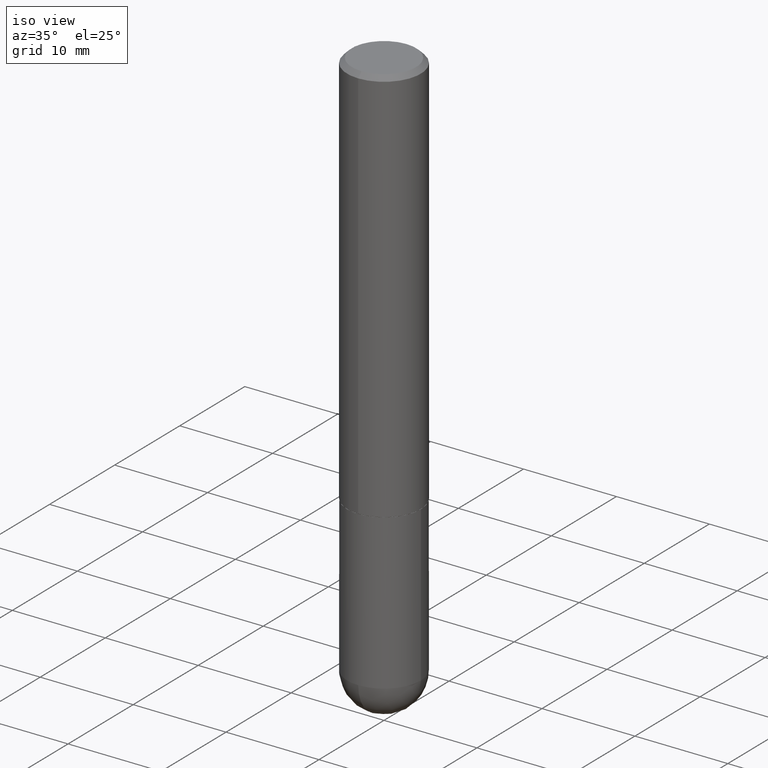
[diagram: clean part render]
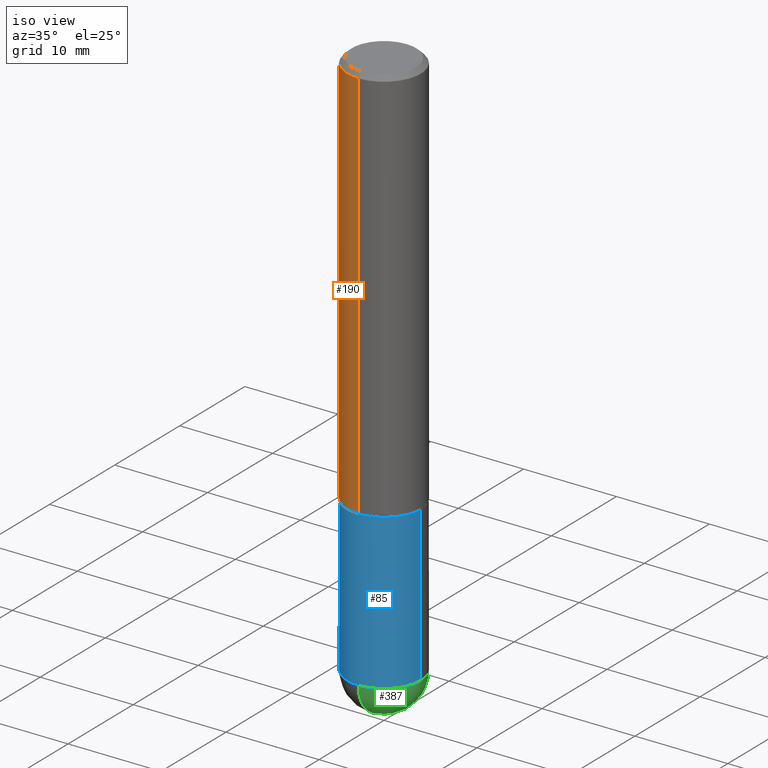
[diagram: same view with three faces highlighted in distinct colors, each labeled with its STEP entity id]
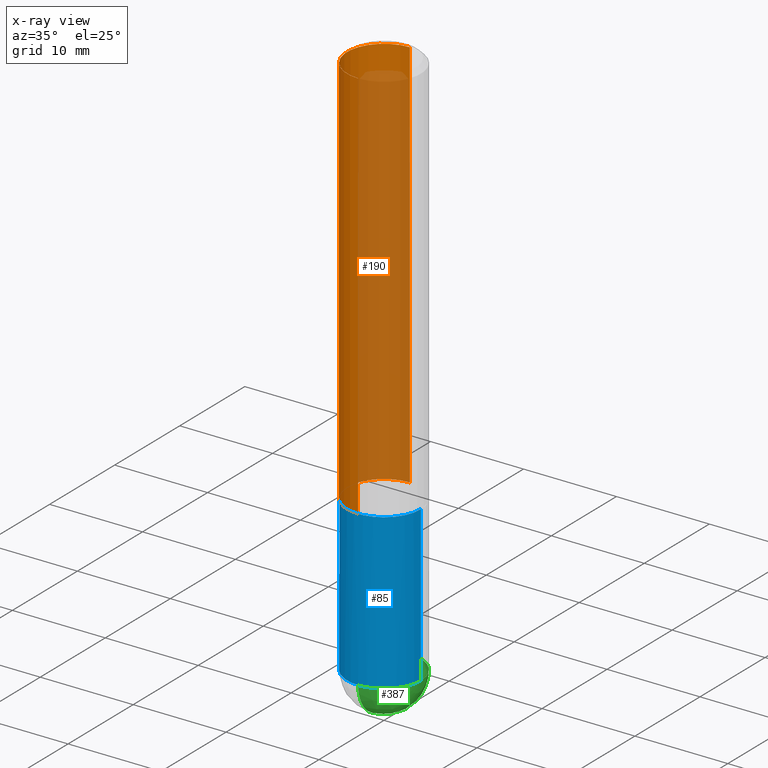
[diagram: x-ray of the same camera — body ghosted, the three highlighted faces saturated]
A machine part, iso view with three faces highlighted in distinct colors.
The next image is the same camera in x-ray (body ghosted, the three faces saturated) — at least one of them is partly hidden behind the body in this view.
Their STEP definitions:

[orange] entity #190 — the highlighted cylindrical surface (partial cylindrical patch) has radius 3.9688 mm, axis along (-0, 0, 1).
#1 = LINE ( 'NONE', #68, #19 ) ;
#18 = CYLINDRICAL_SURFACE ( 'NONE', #248, 0.1562500000000001110 ) ;
#19 = VECTOR ( 'NONE', #241, 39.37007874015748143 ) ;
#27 = VERTEX_POINT ( 'NONE', #189 ) ;
#32 = CARTESIAN_POINT ( 'NONE',  ( -1.091087918388479765E-15, -0.1562500000000001110, 5.454067469963343169E-16 ) ) ;
#68 = CARTESIAN_POINT ( 'NONE',  ( 1.110223024625157132E-15, 0.1562500000000001110, -5.454067469963343169E-16 ) ) ;
#79 = EDGE_CURVE ( 'NONE', #402, #97, #264, .T. ) ;
#91 = CARTESIAN_POINT ( 'NONE',  ( 1.091087918388479568E-15, 0.1562499999999999445, -0.02000000000000057981 ) ) ;
#96 = DIRECTION ( 'NONE',  ( -2.446082020685560042E-29, 3.490603180776537498E-15, 1.000000000000000000 ) ) ;
#97 = VERTEX_POINT ( 'NONE', #211 ) ;
#98 = AXIS2_PLACEMENT_3D ( 'NONE', #261, #378, #99 ) ;
#99 = DIRECTION ( 'NONE',  ( -6.982962677686265922E-15, -1.000000000000000000, 3.496765431890251792E-15 ) ) ;
#107 = DIRECTION ( 'NONE',  ( -6.982962677686265133E-15, -1.000000000000000000, 3.496765431890256920E-15 ) ) ;
#109 = CARTESIAN_POINT ( 'NONE',  ( 0.000000000000000000, 0.000000000000000000, 0.000000000000000000 ) ) ;
#111 = EDGE_CURVE ( 'NONE', #97, #27, #339, .T. ) ;
#127 = EDGE_LOOP ( 'NONE', ( #290, #268, #255, #262 ) ) ;
#135 = VERTEX_POINT ( 'NONE', #91 ) ;
#159 = AXIS2_PLACEMENT_3D ( 'NONE', #271, #341, #107 ) ;
#189 = CARTESIAN_POINT ( 'NONE',  ( -1.071952812151801215E-15, -0.1562500000000000833, -0.01999999999999948694 ) ) ;
#190 = ADVANCED_FACE ( 'NONE', ( #272 ), #18, .T. ) ;
#211 = CARTESIAN_POINT ( 'NONE',  ( -1.091087918388439336E-15, -0.1562500000000060785, -1.686999999999999611 ) ) ;
#238 = VECTOR ( 'NONE', #96, 39.37007874015748143 ) ;
#241 = DIRECTION ( 'NONE',  ( -2.446082020685560042E-29, 3.490603180776537498E-15, 1.000000000000000000 ) ) ;
#244 = DIRECTION ( 'NONE',  ( -2.446082020685560042E-29, 3.490603180776537498E-15, 1.000000000000000000 ) ) ;
#248 = AXIS2_PLACEMENT_3D ( 'NONE', #109, #244, #283 ) ;
#255 = ORIENTED_EDGE ( 'NONE', *, *, #111, .T. ) ;
#261 = CARTESIAN_POINT ( 'NONE',  ( 4.126540368896540526E-29, -5.888647565970019255E-15, -1.687000000000000055 ) ) ;
#262 = ORIENTED_EDGE ( 'NONE', *, *, #309, .F. ) ;
#264 = CIRCLE ( 'NONE', #98, 0.1562500000000002220 ) ;
#268 = ORIENTED_EDGE ( 'NONE', *, *, #79, .T. ) ;
#271 = CARTESIAN_POINT ( 'NONE',  ( 4.892164041371128702E-31, -6.981206361553086139E-17, -0.02000000000000003511 ) ) ;
#272 = FACE_OUTER_BOUND ( 'NONE', #127, .T. ) ;
#283 = DIRECTION ( 'NONE',  ( -6.982962677686265922E-15, -1.000000000000000000, 3.490603180776537104E-15 ) ) ;
#286 = EDGE_CURVE ( 'NONE', #402, #135, #1, .T. ) ;
#290 = ORIENTED_EDGE ( 'NONE', *, *, #286, .F. ) ;
#294 = CIRCLE ( 'NONE', #159, 0.1562500000000000000 ) ;
#309 = EDGE_CURVE ( 'NONE', #135, #27, #294, .T. ) ;
#339 = LINE ( 'NONE', #32, #238 ) ;
#341 = DIRECTION ( 'NONE',  ( -2.446082020685560042E-29, 3.490603180776537498E-15, 1.000000000000000000 ) ) ;
#378 = DIRECTION ( 'NONE',  ( -2.446082020685560042E-29, 3.490603180776537498E-15, 1.000000000000000000 ) ) ;
#397 = CARTESIAN_POINT ( 'NONE',  ( 1.110223024625178431E-15, 0.1562499999999943379, -1.687000000000000499 ) ) ;
#402 = VERTEX_POINT ( 'NONE', #397 ) ;

[blue] entity #85 — the highlighted cylindrical surface (partial cylindrical patch) has radius 3.9688 mm, axis along (-0, 0, 1).
#8 = CARTESIAN_POINT ( 'NONE',  ( 4.127951344840510809E-29, -5.893620499967230340E-15, -1.688000000000000167 ) ) ;
#10 = VERTEX_POINT ( 'NONE', #278 ) ;
#12 = ORIENTED_EDGE ( 'NONE', *, *, #197, .T. ) ;
#21 = EDGE_CURVE ( 'NONE', #10, #370, #263, .T. ) ;
#24 = AXIS2_PLACEMENT_3D ( 'NONE', #365, #150, #215 ) ;
#26 = CYLINDRICAL_SURFACE ( 'NONE', #88, 0.1562500000000000000 ) ;
#31 = VERTEX_POINT ( 'NONE', #355 ) ;
#44 = VECTOR ( 'NONE', #237, 39.37007874015748143 ) ;
#65 = EDGE_CURVE ( 'NONE', #31, #217, #296, .T. ) ;
#70 = DIRECTION ( 'NONE',  ( -2.445468806185136877E-29, 3.491481338843145188E-15, 1.000000000000000000 ) ) ;
#72 = CIRCLE ( 'NONE', #24, 0.1562500000000000000 ) ;
#73 = CARTESIAN_POINT ( 'NONE',  ( 0.000000000000000000, 0.000000000000000000, 0.000000000000000000 ) ) ;
#80 = AXIS2_PLACEMENT_3D ( 'NONE', #148, #398, #86 ) ;
#81 = VECTOR ( 'NONE', #70, 39.37007874015748143 ) ;
#85 = ADVANCED_FACE ( 'NONE', ( #318 ), #26, .T. ) ;
#86 = DIRECTION ( 'NONE',  ( 1.000000000000000000, -6.982962677686262766E-15, 0.000000000000000000 ) ) ;
#88 = AXIS2_PLACEMENT_3D ( 'NONE', #73, #243, #391 ) ;
#102 = EDGE_CURVE ( 'NONE', #217, #349, #174, .T. ) ;
#106 = DIRECTION ( 'NONE',  ( 1.000000000000000000, -6.982962677686269077E-15, 0.000000000000000000 ) ) ;
#116 = ORIENTED_EDGE ( 'NONE', *, *, #102, .F. ) ;
#119 = EDGE_CURVE ( 'NONE', #370, #349, #227, .T. ) ;
#148 = CARTESIAN_POINT ( 'NONE',  ( 5.731567514496413899E-29, -8.183159387913622595E-15, -2.343750000000000000 ) ) ;
#150 = DIRECTION ( 'NONE',  ( -2.445468806185136597E-29, 3.491481338843145583E-15, 1.000000000000000000 ) ) ;
#174 = CIRCLE ( 'NONE', #401, 0.1562500000000000000 ) ;
#176 = ORIENTED_EDGE ( 'NONE', *, *, #65, .F. ) ;
#187 = EDGE_LOOP ( 'NONE', ( #176, #12, #361, #303, #116 ) ) ;
#197 = EDGE_CURVE ( 'NONE', #31, #10, #72, .T. ) ;
#215 = DIRECTION ( 'NONE',  ( 1.000000000000000000, -6.982962677686262766E-15, 0.000000000000000000 ) ) ;
#217 = VERTEX_POINT ( 'NONE', #306 ) ;
#227 = LINE ( 'NONE', #407, #44 ) ;
#237 = DIRECTION ( 'NONE',  ( -2.445468806185136877E-29, 3.491481338843145188E-15, 1.000000000000000000 ) ) ;
#243 = DIRECTION ( 'NONE',  ( -2.445468806185136597E-29, 3.491481338843145583E-15, 1.000000000000000000 ) ) ;
#263 = CIRCLE ( 'NONE', #80, 0.1562500000000000000 ) ;
#274 = CARTESIAN_POINT ( 'NONE',  ( 0.1562500000000000000, -8.129477862328905246E-15, -2.343750000000000000 ) ) ;
#276 = CARTESIAN_POINT ( 'NONE',  ( 0.1562500000000000000, -6.984708418355709513E-15, -1.688000000000000167 ) ) ;
#278 = CARTESIAN_POINT ( 'NONE',  ( -1.110223024625101517E-15, -0.1562500000000085487, -2.343749999999999556 ) ) ;
#296 = LINE ( 'NONE', #412, #81 ) ;
#303 = ORIENTED_EDGE ( 'NONE', *, *, #119, .T. ) ;
#306 = CARTESIAN_POINT ( 'NONE',  ( -0.1562500000000000000, -5.928166919315269532E-15, -1.688000000000000167 ) ) ;
#307 = DIRECTION ( 'NONE',  ( -2.445468806185136597E-29, 3.491481338843145583E-15, 1.000000000000000000 ) ) ;
#318 = FACE_OUTER_BOUND ( 'NONE', #187, .T. ) ;
#349 = VERTEX_POINT ( 'NONE', #276 ) ;
#355 = CARTESIAN_POINT ( 'NONE',  ( -0.1562500000000000000, -5.928166919315270321E-15, -2.343750000000000000 ) ) ;
#361 = ORIENTED_EDGE ( 'NONE', *, *, #21, .T. ) ;
#365 = CARTESIAN_POINT ( 'NONE',  ( 5.731567514496413899E-29, -8.183159387913622595E-15, -2.343750000000000000 ) ) ;
#370 = VERTEX_POINT ( 'NONE', #274 ) ;
#391 = DIRECTION ( 'NONE',  ( 1.000000000000000000, -6.982962677686266711E-15, 4.876176775795936353E-29 ) ) ;
#398 = DIRECTION ( 'NONE',  ( -2.445468806185136597E-29, 3.491481338843145583E-15, 1.000000000000000000 ) ) ;
#401 = AXIS2_PLACEMENT_3D ( 'NONE', #8, #307, #106 ) ;
#407 = CARTESIAN_POINT ( 'NONE',  ( 0.1562500000000000000, -1.091087918388479174E-15, 7.619026212181150377E-30 ) ) ;
#412 = CARTESIAN_POINT ( 'NONE',  ( -0.1562500000000000000, 1.110223024625156540E-15, -7.685836078523291160E-30 ) ) ;

[green] entity #387 — the highlighted spherical surface has radius 3.9688 mm.
#10 = VERTEX_POINT ( 'NONE', #278 ) ;
#20 = DIRECTION ( 'NONE',  ( -2.445468806185136597E-29, 3.491481338843145583E-15, 1.000000000000000000 ) ) ;
#21 = EDGE_CURVE ( 'NONE', #10, #370, #263, .T. ) ;
#33 = AXIS2_PLACEMENT_3D ( 'NONE', #251, #20, #173 ) ;
#46 = DIRECTION ( 'NONE',  ( -7.105427357601000281E-15, -1.000000000000000000, 0.000000000000000000 ) ) ;
#52 = ORIENTED_EDGE ( 'NONE', *, *, #342, .F. ) ;
#56 = ORIENTED_EDGE ( 'NONE', *, *, #275, .T. ) ;
#62 = CARTESIAN_POINT ( 'NONE',  ( 5.400447736582527652E-29, -8.657341756053672891E-15, -2.343750000000000000 ) ) ;
#74 = CARTESIAN_POINT ( 'NONE',  ( 5.400447736582527652E-29, -8.657341756053672891E-15, -2.343750000000000000 ) ) ;
#75 = CARTESIAN_POINT ( 'NONE',  ( 1.091087918388535577E-15, 0.1562499999999916733, -2.343750000000000444 ) ) ;
#80 = AXIS2_PLACEMENT_3D ( 'NONE', #148, #398, #86 ) ;
#86 = DIRECTION ( 'NONE',  ( 1.000000000000000000, -6.982962677686262766E-15, 0.000000000000000000 ) ) ;
#105 = DIRECTION ( 'NONE',  ( 1.000000000000000000, -6.982962677686265922E-15, 4.883557194083112340E-29 ) ) ;
#115 = VERTEX_POINT ( 'NONE', #354 ) ;
#148 = CARTESIAN_POINT ( 'NONE',  ( 5.731567514496413899E-29, -8.183159387913622595E-15, -2.343750000000000000 ) ) ;
#166 = CIRCLE ( 'NONE', #374, 0.1562500000000002498 ) ;
#170 = ORIENTED_EDGE ( 'NONE', *, *, #21, .F. ) ;
#173 = DIRECTION ( 'NONE',  ( 1.000000000000000000, -6.982962677686262766E-15, 0.000000000000000000 ) ) ;
#183 = VERTEX_POINT ( 'NONE', #75 ) ;
#185 = DIRECTION ( 'NONE',  ( 6.982962677686265922E-15, 1.000000000000000000, -3.496765431890251398E-15 ) ) ;
#186 = AXIS2_PLACEMENT_3D ( 'NONE', #337, #105, #330 ) ;
#203 = AXIS2_PLACEMENT_3D ( 'NONE', #74, #212, #185 ) ;
#207 = CIRCLE ( 'NONE', #186, 0.1562500000000002498 ) ;
#212 = DIRECTION ( 'NONE',  ( -1.000000000000000000, 6.982962677686265922E-15, -4.883557194083112340E-29 ) ) ;
#214 = FACE_OUTER_BOUND ( 'NONE', #366, .T. ) ;
#222 = CIRCLE ( 'NONE', #33, 0.1562500000000000000 ) ;
#251 = CARTESIAN_POINT ( 'NONE',  ( 5.731567514496413899E-29, -8.183159387913622595E-15, -2.343750000000000000 ) ) ;
#263 = CIRCLE ( 'NONE', #80, 0.1562500000000000000 ) ;
#267 = EDGE_CURVE ( 'NONE', #115, #10, #166, .T. ) ;
#274 = CARTESIAN_POINT ( 'NONE',  ( 0.1562500000000000000, -8.129477862328905246E-15, -2.343750000000000000 ) ) ;
#275 = EDGE_CURVE ( 'NONE', #115, #183, #207, .T. ) ;
#278 = CARTESIAN_POINT ( 'NONE',  ( -1.110223024625101517E-15, -0.1562500000000085487, -2.343749999999999556 ) ) ;
#330 = DIRECTION ( 'NONE',  ( 6.982962677686265922E-15, 1.000000000000000000, 0.000000000000000000 ) ) ;
#337 = CARTESIAN_POINT ( 'NONE',  ( 5.400447736582527652E-29, -8.657341756053672891E-15, -2.343750000000000000 ) ) ;
#342 = EDGE_CURVE ( 'NONE', #370, #183, #222, .T. ) ;
#348 = ORIENTED_EDGE ( 'NONE', *, *, #267, .F. ) ;
#354 = CARTESIAN_POINT ( 'NONE',  ( 5.789233224183170584E-29, -9.193318162129576161E-15, -2.500000000000000000 ) ) ;
#357 = DIRECTION ( 'NONE',  ( -1.000000000000000000, 7.105427357601001070E-15, -4.926315508542082329E-29 ) ) ;
#366 = EDGE_LOOP ( 'NONE', ( #348, #56, #52, #170 ) ) ;
#370 = VERTEX_POINT ( 'NONE', #274 ) ;
#374 = AXIS2_PLACEMENT_3D ( 'NONE', #62, #357, #46 ) ;
#387 = ADVANCED_FACE ( 'NONE', ( #214 ), #389, .T. ) ;
#389 = SPHERICAL_SURFACE ( 'NONE', #203, 0.1562500000000002498 ) ;
#398 = DIRECTION ( 'NONE',  ( -2.445468806185136597E-29, 3.491481338843145583E-15, 1.000000000000000000 ) ) ;